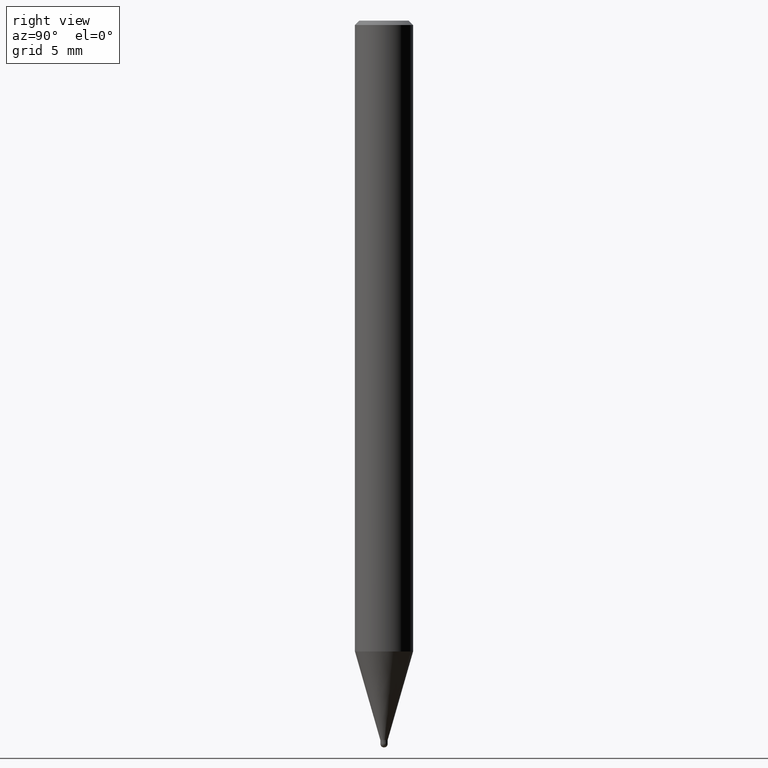
[diagram: clean part render]
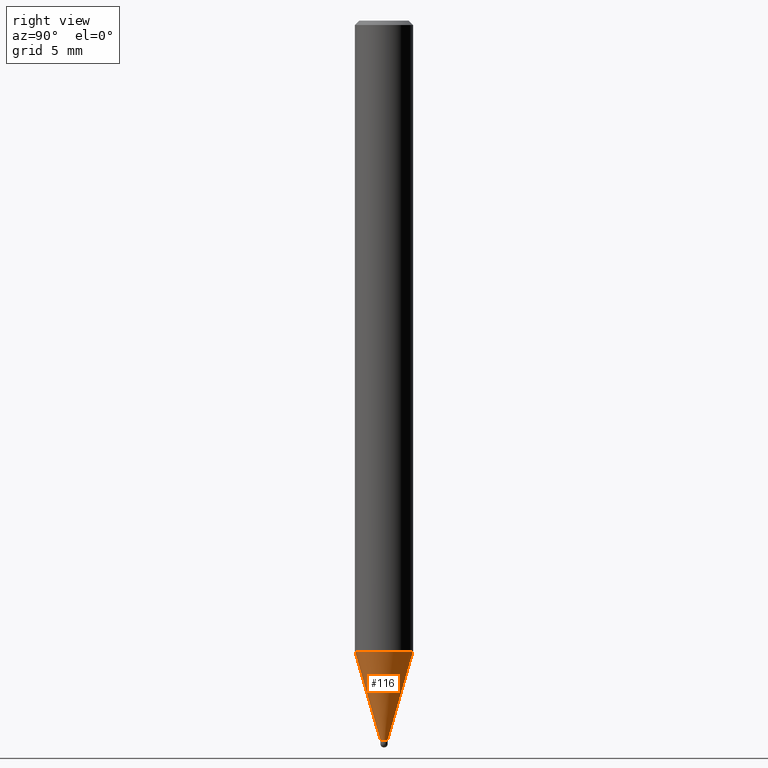
[diagram: same view with one face highlighted and labeled with its STEP entity id]
A machine part, right view. The second image highlights one B-rep face of the part: STEP entity #116.
In plain terms, the highlighted conical surface has half-angle 16 deg.
Its self-contained STEP definition (entity closure, byte-faithful):
#102=EDGE_CURVE('',#106,#122,#227,.T.);
#106=VERTEX_POINT('',#232);
#116=ADVANCED_FACE('',(#244),#245,.T.);
#122=VERTEX_POINT('',#252);
#126=VERTEX_POINT('',#256);
#148=EDGE_CURVE('',#106,#174,#280,.T.);
#152=EDGE_CURVE('',#126,#122,#284,.T.);
#174=VERTEX_POINT('',#312);
#188=EDGE_CURVE('',#174,#126,#328,.T.);
#227=CIRCLE('',#368,1.99995);
#232=CARTESIAN_POINT('',(0.0,1.99995,-43.397));
#244=FACE_OUTER_BOUND('',#387,.T.);
#245=CONICAL_SURFACE('',#388,1.12495,0.27925160696619);
#252=CARTESIAN_POINT('',(2.44915147732706E-016,-1.99995,-43.397));
#256=CARTESIAN_POINT('',(3.06090358137903E-017,-0.24995,-49.5));
#280=LINE('',#428,#429);
#284=LINE('',#434,#435);
#312=CARTESIAN_POINT('',(0.0,0.24995,-49.5));
#328=CIRCLE('',#489,0.24995);
#368=AXIS2_PLACEMENT_3D('',#507,#508,#509);
#387=EDGE_LOOP('',(#539,#540,#541,#542));
#388=AXIS2_PLACEMENT_3D('',#543,#544,#545);
#428=CARTESIAN_POINT('',(-1.37762091773248E-016,1.12495,-46.4485));
#429=VECTOR('',#578,1.0);
#434=CARTESIAN_POINT('',(1.37762091773248E-016,-1.12495,-46.4485));
#435=VECTOR('',#579,1.0);
#489=AXIS2_PLACEMENT_3D('',#647,#648,#649);
#507=CARTESIAN_POINT('',(0.0,0.0,-43.397));
#508=DIRECTION('',(0.0,0.0,-1.0));
#509=DIRECTION('',(0.0,1.0,0.0));
#539=ORIENTED_EDGE('',*,*,#148,.F.);
#540=ORIENTED_EDGE('',*,*,#102,.T.);
#541=ORIENTED_EDGE('',*,*,#152,.F.);
#542=ORIENTED_EDGE('',*,*,#188,.F.);
#543=CARTESIAN_POINT('',(0.0,0.0,-46.4485));
#544=DIRECTION('',(-0.0,-0.0,1.0));
#545=DIRECTION('',(0.0,1.0,0.0));
#578=DIRECTION('',(3.37545993768291E-017,-0.275636324043808,-0.961261991793921));
#579=DIRECTION('',(3.37545993768291E-017,-0.275636324043808,0.961261991793921));
#647=CARTESIAN_POINT('',(0.0,0.0,-49.5));
#648=DIRECTION('',(0.0,0.0,-1.0));
#649=DIRECTION('',(0.0,1.0,0.0));